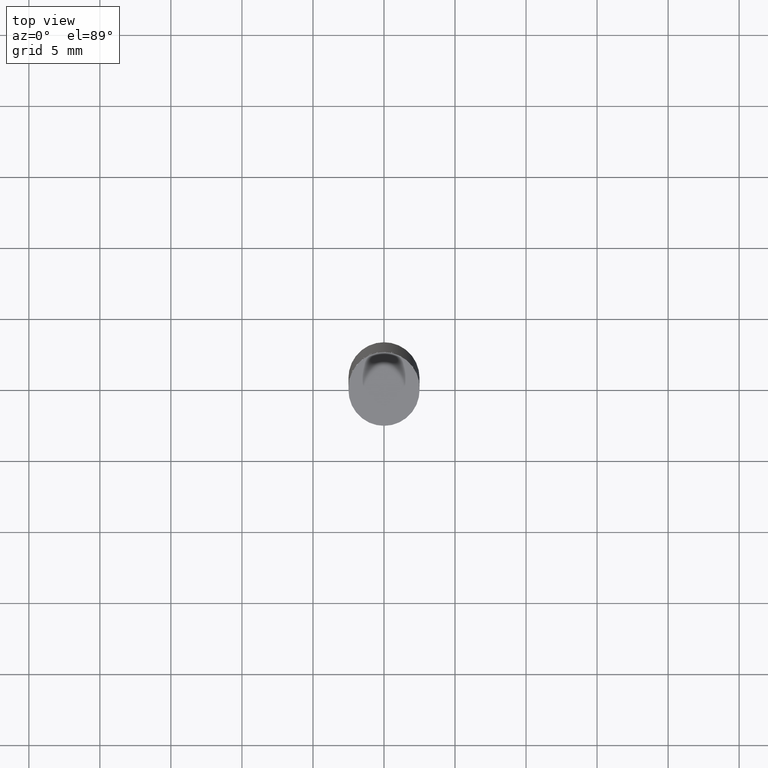
[diagram: clean part render]
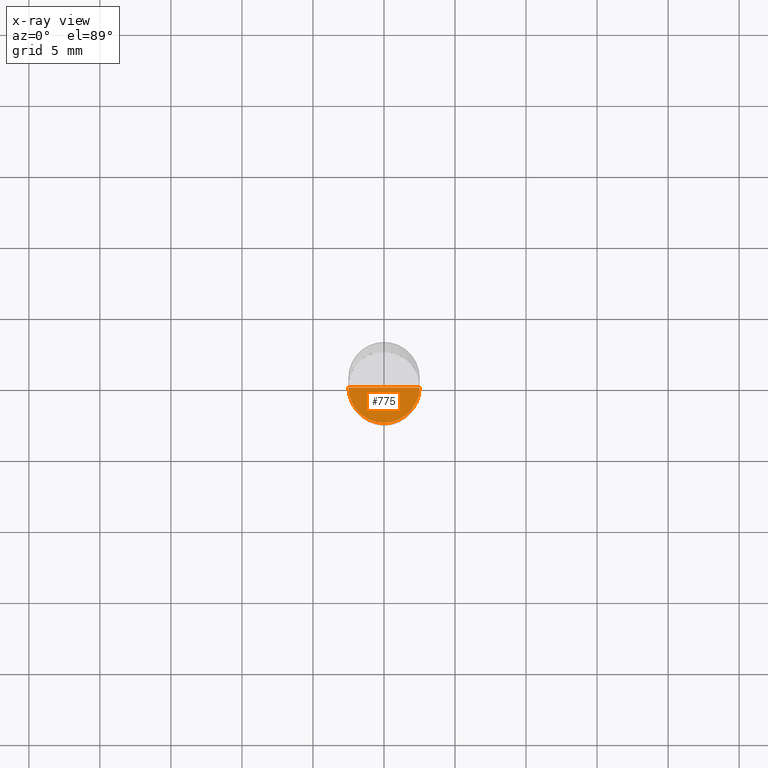
[diagram: x-ray — body ghosted, one internal face saturated and labeled with its STEP entity id]
A machine part, top view, then the same camera in x-ray: the body is ghosted and one INTERNAL B-rep face — a face not visible from any outside direction — is saturated and labeled: STEP entity #775.
In plain terms, the highlighted face is a freeform B-spline surface patch.
Its self-contained STEP definition (entity closure, byte-faithful):
#630=CARTESIAN_POINT('',(2.5,0.0,-3.0));
#634=CARTESIAN_POINT('',(-2.5,0.0,-3.0));
#635=CARTESIAN_POINT('',(0.0,0.0,-3.0));
#638=CARTESIAN_POINT('',(-2.5,-2.5,-3.0));
#639=CARTESIAN_POINT('',(0.0,-2.5,-3.0));
#640=CARTESIAN_POINT('',(2.5,-2.5,-3.0));
#760=(
BOUNDED_SURFACE()
B_SPLINE_SURFACE(1,2,(
(#634,#638,#639,#640,#630),
(#635,#635,#635,#635,#635)
), .UNSPECIFIED.,.F.,.F.,.F.)
B_SPLINE_SURFACE_WITH_KNOTS((2,2),(3,2,3),(
0.0,1.0),(
0.0,0.5,1.0), .UNSPECIFIED.)
GEOMETRIC_REPRESENTATION_ITEM()
RATIONAL_B_SPLINE_SURFACE(((1.0,0.707106781187,1.0,0.707106781187,1.0),
(1.0,0.707106781187,1.0,0.707106781187,1.0)
))
REPRESENTATION_ITEM('')
SURFACE()
);
#761=(
BOUNDED_CURVE()
B_SPLINE_CURVE(2,(#630,#640,#639,#638,#634),.UNSPECIFIED.,.F.,.F.)
B_SPLINE_CURVE_WITH_KNOTS((3,2,3),
(0.0,0.5,1.0),.UNSPECIFIED.)
CURVE()
GEOMETRIC_REPRESENTATION_ITEM()
RATIONAL_B_SPLINE_CURVE((1.0,0.707106781187,1.0,0.707106781187,1.0))
REPRESENTATION_ITEM('')
);
#762=(
BOUNDED_CURVE()
B_SPLINE_CURVE(1,(#634,#635),.UNSPECIFIED.,.F.,.F.)
B_SPLINE_CURVE_WITH_KNOTS((2,2),
(0.0,1.0),.UNSPECIFIED.)
CURVE()
GEOMETRIC_REPRESENTATION_ITEM()
RATIONAL_B_SPLINE_CURVE((1.0,1.0))
REPRESENTATION_ITEM('')
);
#763=(
BOUNDED_CURVE()
B_SPLINE_CURVE(1,(#635,#630),.UNSPECIFIED.,.F.,.F.)
B_SPLINE_CURVE_WITH_KNOTS((2,2),
(0.0,1.0),.UNSPECIFIED.)
CURVE()
GEOMETRIC_REPRESENTATION_ITEM()
RATIONAL_B_SPLINE_CURVE((1.0,1.0))
REPRESENTATION_ITEM('')
);
#764=VERTEX_POINT('',#630);
#765=VERTEX_POINT('',#634);
#766=VERTEX_POINT('',#635);
#767=EDGE_CURVE('',#764,#765,#761,.T.);
#768=EDGE_CURVE('',#765,#766,#762,.T.);
#769=EDGE_CURVE('',#766,#764,#763,.T.);
#770=ORIENTED_EDGE('',*,*,#767,.T.);
#771=ORIENTED_EDGE('',*,*,#768,.T.);
#772=ORIENTED_EDGE('',*,*,#769,.T.);
#773=EDGE_LOOP('',(#770,#771,#772));
#774=FACE_OUTER_BOUND('',#773,.T.);
#775=ADVANCED_FACE('',(#774),#760,.T.);